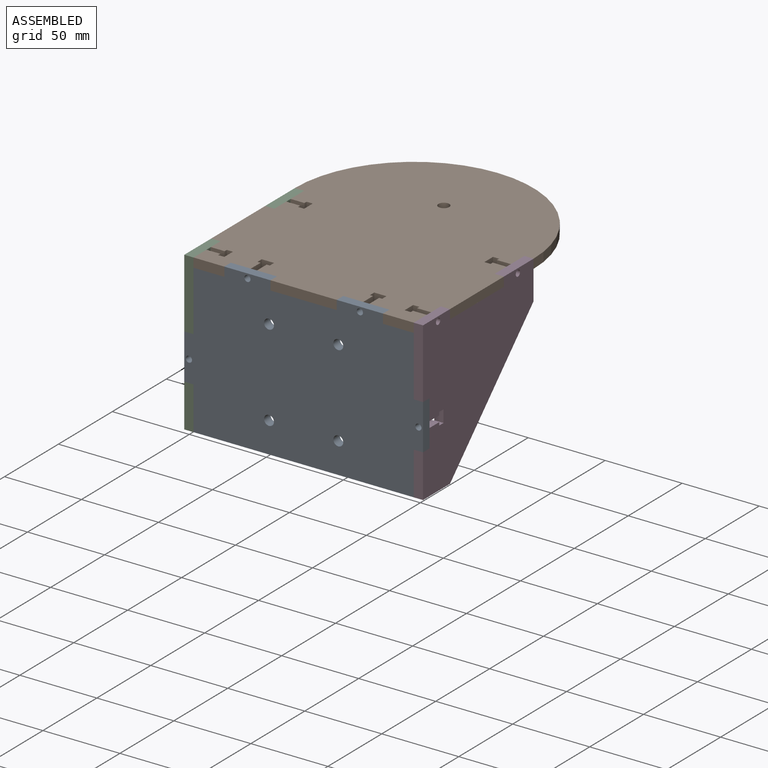
[diagram: assembled view]
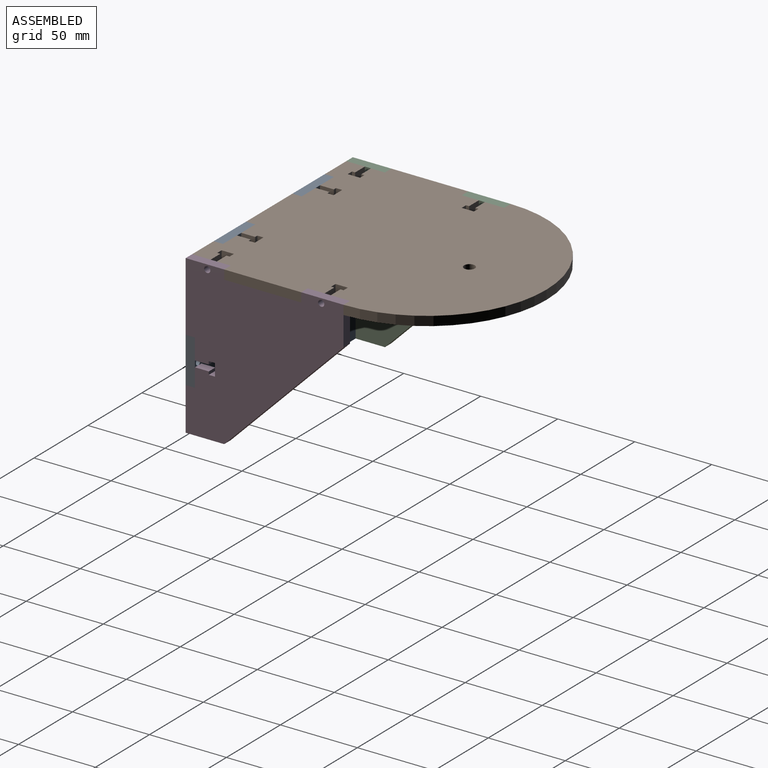
[diagram: assembled view, second angle]
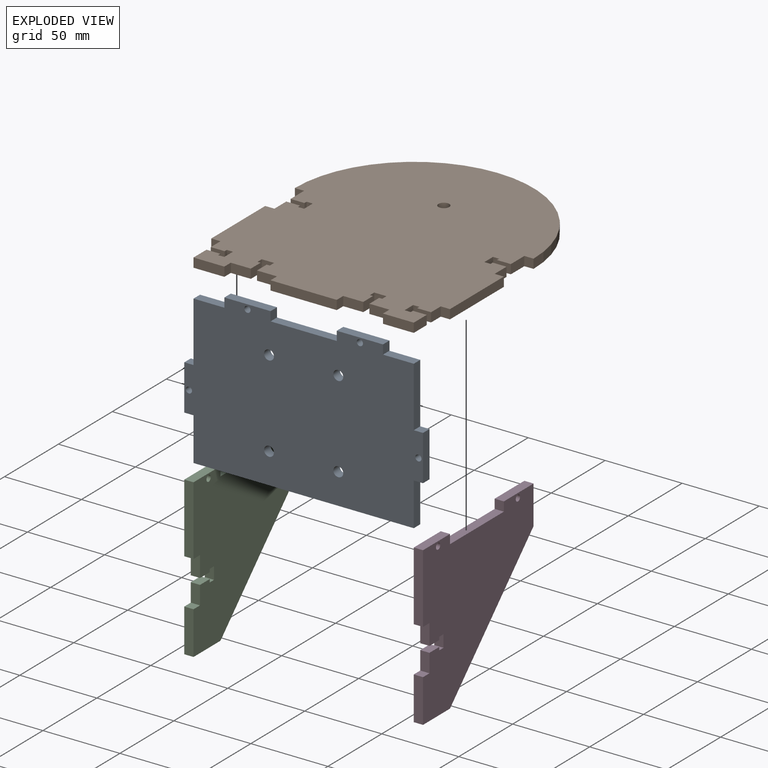
[diagram: exploded view]
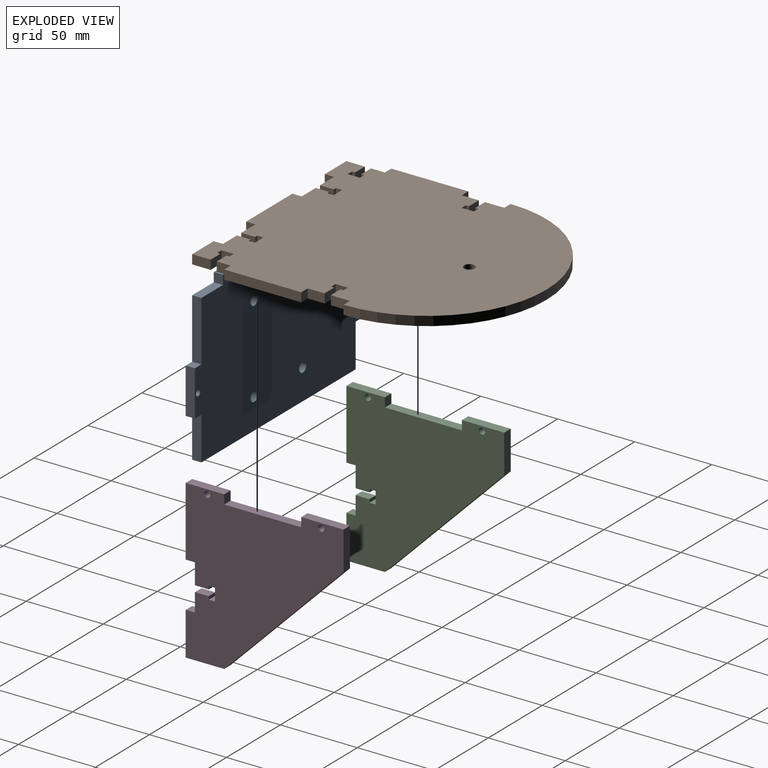
[diagram: exploded view, second angle]
ASSEMBLY  parts=4 mates=3
PART A: 30 faces, bbox 155x6x102.5 mm
  f0: plane 30x6mm, normal (0,0,1), area 180mm2, adj f1,f27,f28,f29
  f1: plane 6x6mm, normal (-1,0,0), area 36mm2, adj f0,f2,f28,f29
  f2: plane 43x6mm, normal (0,0,1), area 258mm2, adj f1,f3,f28,f29
  f3: plane 6x6mm, normal (1,0,0), area 36mm2, adj f2,f4,f28,f29
  f4: plane 30x6mm, normal (0,0,1), area 180mm2, adj f3,f5,f28,f29
  f5: plane 6x6mm, normal (-1,0,0), area 36mm2, adj f4,f6,f28,f29
  f6: plane 20x6mm, normal (0,0,1), area 120mm2, adj f5,f7,f28,f29
  f7: plane 39x6mm, normal (-1,0,0), area 234mm2, adj f6,f8,f28,f29
  f8: plane 6x6mm, normal (0,0,1), area 36mm2, adj f7,f9,f28,f29
  f9: plane 29.5x6mm, normal (-1,0,0), area 177mm2, adj f8,f10,f28,f29
  f10: plane 6x6mm, normal (0,0,-1), area 36mm2, adj f9,f11,f28,f29
  f11: plane 28x6mm, normal (-1,0,0), area 168mm2, adj f10,f12,f28,f29
  f12: plane 143x6mm, normal (0,0,-1), area 858mm2, adj f11,f13,f28,f29
  f13: plane 28x6mm, normal (1,0,0), area 168mm2, adj f12,f14,f28,f29
  f14: plane 6x6mm, normal (0,0,-1), area 36mm2, adj f13,f15,f28,f29
  f15: plane 29.5x6mm, normal (1,0,0), area 177mm2, adj f14,f16,f28,f29
  f16: plane 6x6mm, normal (0,0,1), area 36mm2, adj f15,f17,f28,f29
  f17: plane 39x6mm, normal (1,0,0), area 234mm2, adj f16,f18,f28,f29
  f18: plane 20x6mm, normal (0,0,1), area 120mm2, adj f17,f27,f28,f29
  f19: cylinder r=2mm len=6mm, axis (0,1,0), area 75.4mm2, adj f28,f29
  f20: cylinder r=2mm len=6mm, axis (0,1,0), area 75.4mm2, adj f28,f29
  f21: cylinder r=2mm len=6mm, axis (0,1,0), area 75.4mm2, adj f28,f29
  f22: cylinder r=2mm len=6mm, axis (0,1,0), area 75.4mm2, adj f28,f29
  f23: cylinder r=3.2mm len=6.4mm, axis (0,1,0), area 120.6mm2, adj f28,f29
  f24: cylinder r=3.2mm len=6.4mm, axis (0,1,0), area 120.6mm2, adj f28,f29
  f25: cylinder r=3.2mm len=6.4mm, axis (0,1,0), area 120.6mm2, adj f28,f29
  f26: cylinder r=3.2mm len=6.4mm, axis (0,1,0), area 120.6mm2, adj f28,f29
  f27: plane 6x6mm, normal (1,0,0), area 36mm2, adj f0,f18,f28,f29
  f28: plane 155x102.5mm, normal (0,-1,0), area 14334.6mm2, adj f0,f1,f2,f3,f4,f5,f6,f7
  f29: plane 155x102.5mm, normal (0,1,0), area 14334.6mm2, adj f0,f1,f2,f3,f4,f5,f6,f7
PART B: 73 faces, bbox 155x180x6 mm
  f0: plane 43x6mm, normal (0,-1,0), area 258mm2, adj f1,f70,f71,f72
  f1: plane 6x6mm, normal (1,0,0), area 36mm2, adj f0,f2,f71,f72
  f2: plane 13x6mm, normal (0,-1,0), area 78mm2, adj f1,f3,f71,f72
  f3: plane 9x6mm, normal (1,0,0), area 54mm2, adj f2,f4,f71,f72
  f4: plane 6x2mm, normal (0,1,0), area 12mm2, adj f3,f5,f71,f72
  f5: plane 6x4mm, normal (1,0,0), area 24mm2, adj f4,f6,f71,f72
  f6: plane 8x6mm, normal (0,-1,0), area 48mm2, adj f5,f7,f71,f72
  f7: plane 6x4mm, normal (-1,0,0), area 24mm2, adj f6,f8,f71,f72
  f8: plane 6x2mm, normal (0,1,0), area 12mm2, adj f7,f9,f71,f72
  f9: plane 9x6mm, normal (-1,0,0), area 54mm2, adj f8,f10,f71,f72
  f10: plane 13x6mm, normal (0,-1,0), area 78mm2, adj f9,f11,f71,f72
  f11: plane 6x6mm, normal (-1,0,0), area 36mm2, adj f10,f12,f71,f72
  f12: plane 20x6mm, normal (0,-1,0), area 120mm2, adj f11,f13,f71,f72
  f13: plane 12x6mm, normal (1,0,0), area 72mm2, adj f12,f14,f71,f72
  f14: plane 9x6mm, normal (0,1,0), area 54mm2, adj f13,f15,f71,f72
  f15: plane 6x2mm, normal (-1,0,0), area 12mm2, adj f14,f16,f71,f72
  f16: plane 6x4mm, normal (0,1,0), area 24mm2, adj f15,f17,f71,f72
  f17: plane 8x6mm, normal (1,0,0), area 48mm2, adj f16,f18,f71,f72
  f18: plane 6x4mm, normal (0,-1,0), area 24mm2, adj f17,f19,f71,f72
  f19: plane 6x2mm, normal (-1,0,0), area 12mm2, adj f18,f20,f71,f72
  f20: plane 9x6mm, normal (0,-1,0), area 54mm2, adj f19,f21,f71,f72
  f21: plane 9x6mm, normal (1,0,0), area 54mm2, adj f20,f22,f71,f72
  f22: plane 6x6mm, normal (0,-1,0), area 36mm2, adj f21,f23,f71,f72
  f23: plane 50x6mm, normal (1,0,0), area 300mm2, adj f22,f24,f71,f72
  f24: plane 6x6mm, normal (0,1,0), area 36mm2, adj f23,f25,f71,f72
  f25: plane 11x6mm, normal (1,0,0), area 66mm2, adj f24,f26,f71,f72
  f26: plane 9x6mm, normal (0,1,0), area 54mm2, adj f25,f27,f71,f72
  f27: plane 6x2mm, normal (-1,0,0), area 12mm2, adj f26,f28,f71,f72
  f28: plane 6x4mm, normal (0,1,0), area 24mm2, adj f27,f29,f71,f72
  f29: plane 8x6mm, normal (1,0,0), area 48mm2, adj f28,f30,f71,f72
  f30: plane 6x4mm, normal (0,-1,0), area 24mm2, adj f29,f31,f71,f72
  f31: plane 6x2mm, normal (-1,0,0), area 12mm2, adj f30,f32,f71,f72
  f32: plane 9x6mm, normal (0,-1,0), area 54mm2, adj f31,f33,f71,f72
  f33: plane 12.5x6mm, normal (1,0,0), area 75mm2, adj f32,f34,f71,f72
  f34: plane 6x6mm, normal (0,-1,0), area 36mm2, adj f33,f35,f71,f72
  f35: cylinder r=77.5mm len=155mm, axis (0,0,-1), area 1460.8mm2, adj f34,f36,f71,f72
  f36: plane 6x6mm, normal (0,-1,0), area 36mm2, adj f35,f37,f71,f72
  f37: plane 12.5x6mm, normal (-1,0,0), area 75mm2, adj f36,f38,f71,f72
  f38: plane 9x6mm, normal (0,-1,0), area 54mm2, adj f37,f39,f71,f72
  f39: plane 6x2mm, normal (1,0,0), area 12mm2, adj f38,f40,f71,f72
  f40: plane 6x4mm, normal (0,-1,0), area 24mm2, adj f39,f41,f71,f72
  f41: plane 8x6mm, normal (-1,0,0), area 48mm2, adj f40,f42,f71,f72
  f42: plane 6x4mm, normal (0,1,0), area 24mm2, adj f41,f43,f71,f72
  f43: plane 6x2mm, normal (1,0,0), area 12mm2, adj f42,f44,f71,f72
  f44: plane 9x6mm, normal (0,1,0), area 54mm2, adj f43,f45,f71,f72
  f45: plane 11x6mm, normal (-1,0,0), area 66mm2, adj f44,f46,f71,f72
  f46: plane 6x6mm, normal (0,1,0), area 36mm2, adj f45,f47,f71,f72
  f47: plane 50x6mm, normal (-1,0,0), area 300mm2, adj f46,f48,f71,f72
  f48: plane 6x6mm, normal (0,-1,0), area 36mm2, adj f47,f49,f71,f72
  f49: plane 9x6mm, normal (-1,0,0), area 54mm2, adj f48,f50,f71,f72
  f50: plane 9x6mm, normal (0,-1,0), area 54mm2, adj f49,f51,f71,f72
  f51: plane 6x2mm, normal (1,0,0), area 12mm2, adj f50,f52,f71,f72
  f52: plane 6x4mm, normal (0,-1,0), area 24mm2, adj f51,f53,f71,f72
  f53: plane 8x6mm, normal (-1,0,0), area 48mm2, adj f52,f54,f71,f72
  f54: plane 6x4mm, normal (0,1,0), area 24mm2, adj f53,f55,f71,f72
  f55: plane 6x2mm, normal (1,0,0), area 12mm2, adj f54,f56,f71,f72
  f56: plane 9x6mm, normal (0,1,0), area 54mm2, adj f55,f57,f71,f72
  f57: plane 12x6mm, normal (-1,0,0), area 72mm2, adj f56,f58,f71,f72
  f58: plane 20x6mm, normal (0,-1,0), area 120mm2, adj f57,f59,f71,f72
  f59: plane 6x6mm, normal (1,0,0), area 36mm2, adj f58,f60,f71,f72
  f60: plane 13x6mm, normal (0,-1,0), area 78mm2, adj f59,f61,f71,f72
  f61: plane 9x6mm, normal (1,0,0), area 54mm2, adj f60,f62,f71,f72
  f62: plane 6x2mm, normal (0,1,0), area 12mm2, adj f61,f63,f71,f72
  f63: plane 6x4mm, normal (1,0,0), area 24mm2, adj f62,f64,f71,f72
  f64: plane 8x6mm, normal (0,-1,0), area 48mm2, adj f63,f65,f71,f72
  f65: plane 6x4mm, normal (-1,0,0), area 24mm2, adj f64,f66,f71,f72
  f66: plane 6x2mm, normal (0,1,0), area 12mm2, adj f65,f67,f71,f72
  f67: plane 9x6mm, normal (-1,0,0), area 54mm2, adj f66,f68,f71,f72
  f68: plane 13x6mm, normal (0,-1,0), area 78mm2, adj f67,f70,f71,f72
  f69: cylinder r=3.5mm len=7mm, axis (0,0,-1), area 131.9mm2, adj f71,f72
  f70: plane 6x6mm, normal (-1,0,0), area 36mm2, adj f0,f68,f71,f72
  f71: plane 180x155mm, normal (0,0,1), area 23885.6mm2, adj f0,f1,f2,f3,f4,f5,f6,f7
  f72: plane 180x155mm, normal (0,0,-1), area 23885.6mm2, adj f0,f1,f2,f3,f4,f5,f6,f7
PART C: 25 faces, bbox 6x102.5x102.5 mm
  f0: plane 6x2mm, normal (0,1,0), area 12mm2, adj f1,f22,f23,f24
  f1: plane 9x6mm, normal (0,0,1), area 54mm2, adj f0,f2,f23,f24
  f2: plane 12x6mm, normal (0,-1,0), area 72mm2, adj f1,f3,f23,f24
  f3: plane 6x6mm, normal (0,0,1), area 36mm2, adj f2,f4,f23,f24
  f4: plane 28x6mm, normal (0,-1,0), area 168mm2, adj f3,f5,f23,f24
  f5: plane 25x6mm, normal (0,0,-1), area 150mm2, adj f4,f6,f23,f24
  f6: plane 77.5x77.5mm, normal (0,0.71,-0.71), area 657.6mm2, adj f5,f7,f23,f24
  f7: plane 25x6mm, normal (0,1,0), area 150mm2, adj f6,f8,f23,f24
  f8: plane 27.5x6mm, normal (0,0,1), area 165mm2, adj f7,f9,f23,f24
  f9: plane 6x6mm, normal (0,-1,0), area 36mm2, adj f8,f10,f23,f24
  f10: plane 50x6mm, normal (0,0,1), area 300mm2, adj f9,f11,f23,f24
  f11: plane 6x6mm, normal (0,1,0), area 36mm2, adj f10,f12,f23,f24
  f12: plane 25x6mm, normal (0,0,1), area 150mm2, adj f11,f13,f23,f24
  f13: plane 45x6mm, normal (0,-1,0), area 270mm2, adj f12,f14,f23,f24
  f14: plane 6x6mm, normal (0,0,-1), area 36mm2, adj f13,f15,f23,f24
  f15: plane 13.44x6mm, normal (0,-1,0), area 80.6mm2, adj f14,f16,f23,f24
  f16: plane 9x6mm, normal (0,-0.01,-1), area 54mm2, adj f15,f17,f23,f24
  f17: plane 6x2mm, normal (0,1,0), area 12mm2, adj f16,f18,f23,f24
  f18: plane 6x4mm, normal (0,0,-1), area 24mm2, adj f17,f19,f23,f24
  f19: plane 8x6mm, normal (0,-1,0), area 48mm2, adj f18,f22,f23,f24
  f20: cylinder r=2mm len=6mm, axis (-1,0,0), area 75.4mm2, adj f23,f24
  f21: cylinder r=2mm len=6mm, axis (-1,0,0), area 75.4mm2, adj f23,f24
  f22: plane 6x4mm, normal (0,0,1), area 24mm2, adj f0,f19,f23,f24
  f23: plane 102.5x102.5mm, normal (1,0,0), area 6932.7mm2, adj f0,f1,f2,f3,f4,f5,f6,f7
  f24: plane 102.5x102.5mm, normal (-1,0,0), area 6932.7mm2, adj f0,f1,f2,f3,f4,f5,f6,f7
PART D: same geometry as C
PLACE A t=(-11.17,-79.03,14.14)mm
PLACE B t=(-11.17,4.97,14.14)mm
PLACE C t=(-88.67,2.97,20.14)mm
PLACE D t=(60.33,2.97,20.14)mm
MATE fastened A.f0 <-> B.f71  axis (0,0,1) through (40.33,-79.03,20.14)mm
MATE fastened D.f12 <-> B.f71  axis (0,0,1) through (60.33,-60.03,20.14)mm
MATE fastened C.f12 <-> B.f71  axis (0,0,1) through (-82.67,-60.03,20.14)mm
